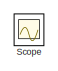
[diagram: root canvas - part 1/2, top left region]
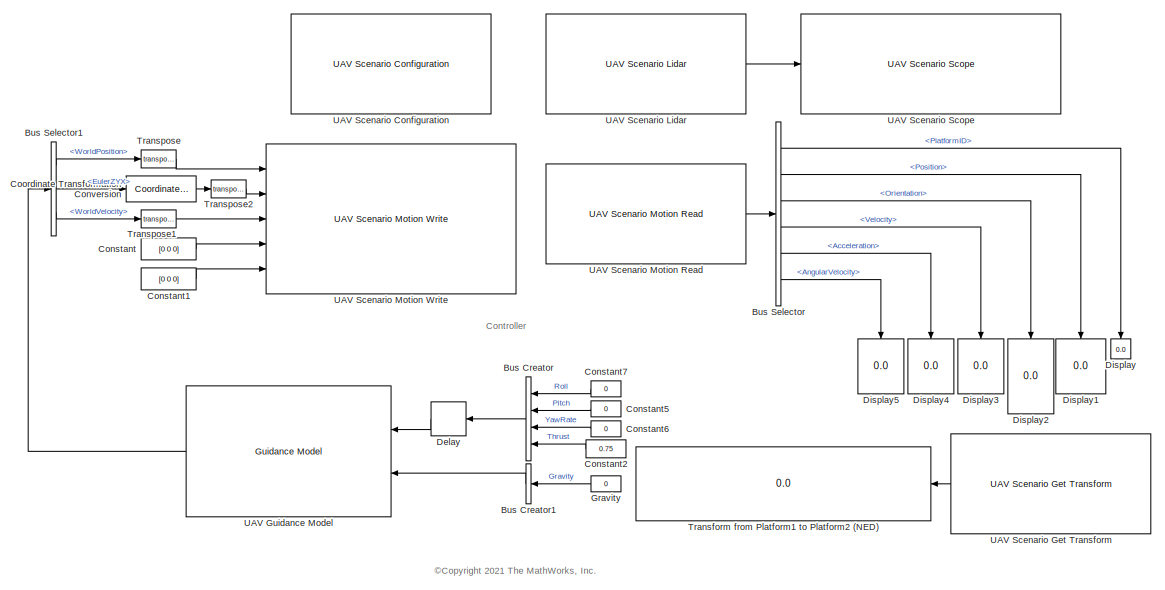
[diagram: root canvas - part 2/2, full width, bottom band]
MODEL slx_fbf1066d31e1
KIND model
CONFIG AbsTol = auto
CONFIG EnableMultiTasking = off
CONFIG FixedStep = auto
CONFIG MaxStep = auto
CONFIG MinStep = auto
CONFIG RelTol = 1e-3
CONFIG SampleTimeConstraint = Unconstrained
CONFIG SolverName = VariableStepAuto
CONFIG StartTime = 0.0
CONFIG StopTime = 10.0
BLOCK [BusCreator] Bus Creator
  DisplayOption = bar
  InheritFromInputs = on
  Inputs = 4
  NameLocation = top
  NonVirtualBus = on
  OutDataTypeStr = Bus: MultirotorGuidanceControlBus
  Ports = [4, 1]
BLOCK [BusCreator] Bus Creator1
  DisplayOption = bar
  InheritFromInputs = on
  Inputs = 1
  NameLocation = top
  NonVirtualBus = on
  OutDataTypeStr = Bus: MultirotorGuidanceEnvironmentBus
  Ports = [1, 1]
BLOCK [BusSelector] Bus Selector
  OutputSignals = PlatformID,Position,Orientation,Velocity,Acceleration,AngularVelocity
  Ports = [1, 6]
BLOCK [BusSelector] Bus Selector1
  OutputSignals = WorldPosition,EulerZYX,WorldVelocity
  Ports = [1, 3]
BLOCK [Constant] Constant
  Value = [0 0 0]
BLOCK [Constant] Constant1
  Value = [0 0 0]
BLOCK [Constant] Constant2
  NameLocation = top
  Value = 0.75
BLOCK [Constant] Constant5
  Value = 0
BLOCK [Constant] Constant6
  Value = 0
BLOCK [Constant] Constant7
  Value = 0
BLOCK [Reference] Coordinate Transformation Conversion  REF=robotcorelib/Coordinate Transformation Conversion
  Ports = [1, 1]
  SourceBlock = robotcorelib/Coordinate Transformation Conversion
  SourceProductBaseCode = RO,NV,RR,UV
  SourceType = robotics.slcore.internal.block.CoordinateTransformationConversion
BLOCK [Delay] Delay
  InputPortMap = u0
  NameLocation = top
  Ports = [1, 1]
BLOCK [Display] Display
  Decimation = 1
  NameLocation = left
  Ports = [1]
BLOCK [Display] Display1
  Decimation = 1
  NameLocation = left
  Ports = [1]
BLOCK [Display] Display2
  Decimation = 1
  NameLocation = left
  Ports = [1]
BLOCK [Display] Display3
  Decimation = 1
  NameLocation = left
  Ports = [1]
BLOCK [Display] Display4
  Decimation = 1
  NameLocation = left
  Ports = [1]
BLOCK [Display] Display5
  Decimation = 1
  NameLocation = left
  Ports = [1]
BLOCK [Constant] Gravity
  Value = 0
BLOCK [Scope] Scope
  Floating = off
  IOType = viewer
  NumInputPorts = 1
  Ports = []
  ScopeSpecificationString = Simulink.scopes.TimeScopeBlockCfg('CurrentConfiguration', extmgr.ConfigurationSet(extmgr.Configuration('Core','General UI',true),extmgr.Configuration('Core','Source UI',true),extmgr.Configuration('Sources','WiredSimulink',true,'DataLoggingVariableName','ScopeData1'),extmgr.Configuration('Visuals','Time Domain',true,'SerializedDisplays',{struct('MinYLimReal','-62.04519','MaxYLimReal','73.56058','YL...<+1418ch>
BLOCK [Display] Transform from Platform1 to Platform2 (NED)
  Decimation = 1
  Ports = [1]
BLOCK [Math] Transpose
  Operator = transpose
  Ports = [1, 1]
BLOCK [Math] Transpose1
  Operator = transpose
  Ports = [1, 1]
BLOCK [Math] Transpose2
  Operator = transpose
  Ports = [1, 1]
BLOCK [Reference] UAV Guidance Model  REF=uavalgslib/Guidance Model
  Ports = [2, 1]
  SourceBlock = uavalgslib/Guidance Model
  SourceProductBaseCode = UV
  SourceType = Guidance Model
BLOCK [Reference] UAV Scenario Configuration  REF=uavsimlib/UAV Scenario Configuration
  Ports = []
  Priority = -1
  SourceBlock = uavsimlib/UAV Scenario Configuration
  SourceProductBaseCode = UV
  SourceType = UAV Scenario Configuration
BLOCK [Reference] UAV Scenario Get Transform  REF=uavsimlib/UAV Scenario Get Transform
  Ports = [0, 1]
  Priority = 1
  SourceBlock = uavsimlib/UAV Scenario Get Transform
  SourceProductBaseCode = UV
  SourceType = UAV Scenario Get Transform
BLOCK [Reference] UAV Scenario Lidar  REF=uavsimlib/UAV Scenario Lidar
  Ports = [0, 1]
  Priority = 1
  SourceBlock = uavsimlib/UAV Scenario Lidar
  SourceProductBaseCode = UV
  SourceType = UAV Scenario Lidar
BLOCK [Reference] UAV Scenario Motion Read  REF=uavsimlib/UAV Scenario Motion Read
  Ports = [0, 1]
  Priority = 1
  SourceBlock = uavsimlib/UAV Scenario Motion Read
  SourceProductBaseCode = UV
  SourceType = UAV Scenario Motion Read
BLOCK [Reference] UAV Scenario Motion Write  REF=uavsimlib/UAV Scenario Motion Write
  Ports = [5]
  Priority = 0
  SourceBlock = uavsimlib/UAV Scenario Motion Write
  SourceProductBaseCode = UV
  SourceType = UAV Scenario Motion Write
BLOCK [Reference] UAV Scenario Scope  REF=uavsimlib/UAV Scenario Scope
  Ports = [1]
  Priority = 1
  SourceBlock = uavsimlib/UAV Scenario Scope
  SourceProductBaseCode = UV
  SourceType = UAV Scenario Scope
ANNOTATION (root): <copyright redacted>
ANNOTATION (root): Controller
LINE Bus Creator1:1 -> UAV Guidance Model:2
LINE Bus Creator:1 -> Delay:1
LINE Bus Selector1:1 -> Transpose:1
LINE Bus Selector1:2 -> Coordinate Transformation Conversion:1
LINE Bus Selector1:3 -> Transpose1:1
LINE Bus Selector:1 -> Display:1
LINE Bus Selector:2 -> Display1:1
LINE Bus Selector:3 -> Display2:1
LINE Bus Selector:4 -> Display3:1
LINE Bus Selector:5 -> Display4:1
LINE Bus Selector:6 -> Display5:1
LINE Constant1:1 -> UAV Scenario Motion Write:5
LINE Constant2:1 -> Bus Creator:4
LINE Constant5:1 -> Bus Creator:2
LINE Constant6:1 -> Bus Creator:3
LINE Constant7:1 -> Bus Creator:1
LINE Constant:1 -> UAV Scenario Motion Write:4
LINE Coordinate Transformation Conversion:1 -> Transpose2:1
LINE Delay:1 -> UAV Guidance Model:1
LINE Gravity:1 -> Bus Creator1:1
LINE Transpose1:1 -> UAV Scenario Motion Write:3
LINE Transpose2:1 -> UAV Scenario Motion Write:2
LINE Transpose:1 -> UAV Scenario Motion Write:1
LINE UAV Guidance Model:1 -> Bus Selector1:1
LINE UAV Scenario Get Transform:1 -> Transform from Platform1 to Platform2 (NED):1
LINE UAV Scenario Lidar:1 -> UAV Scenario Scope:1
LINE UAV Scenario Motion Read:1 -> Bus Selector:1
